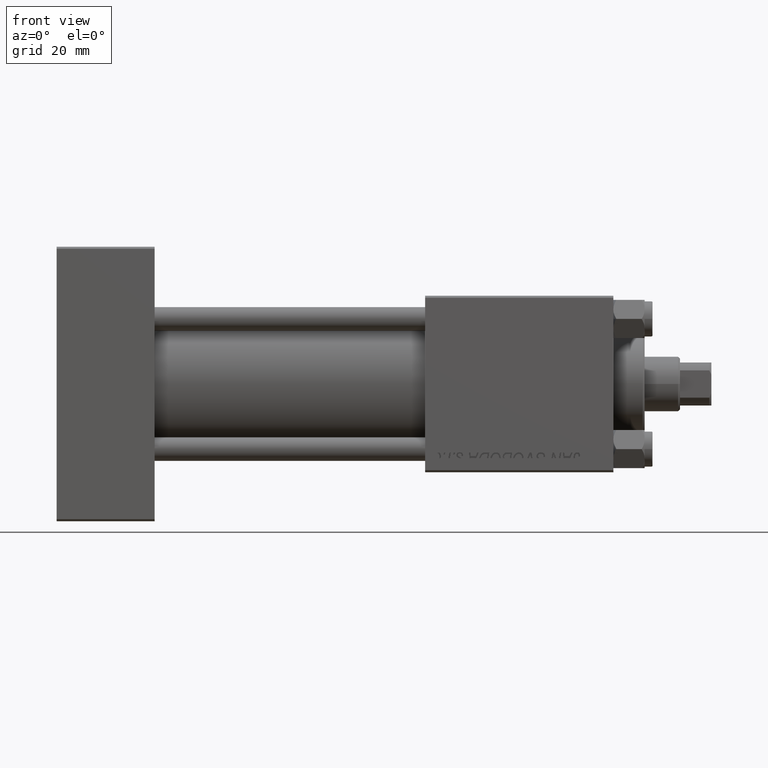
[diagram: clean part render]
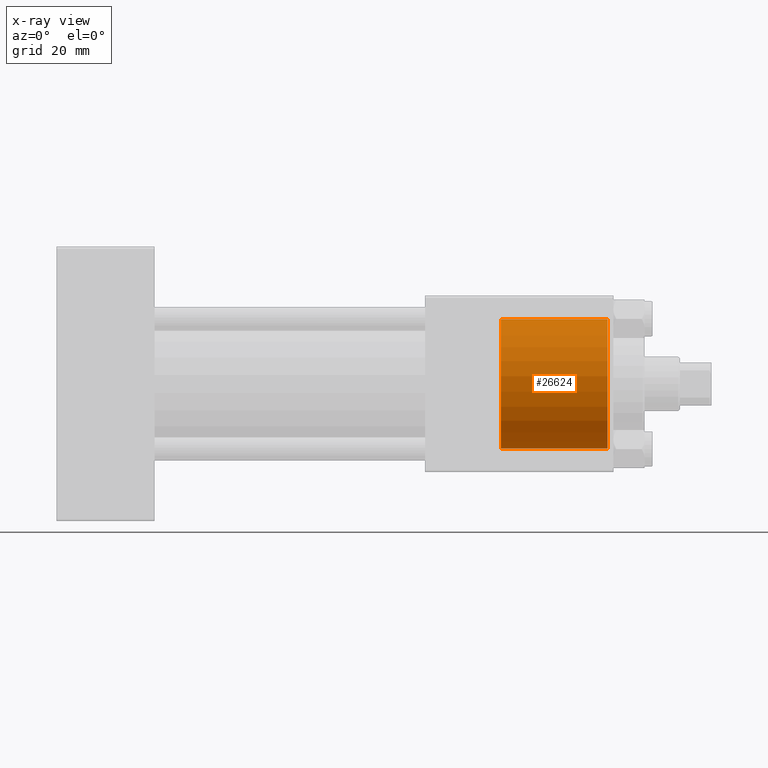
[diagram: x-ray — body ghosted, one internal face saturated and labeled with its STEP entity id]
A machine part, front view, then the same camera in x-ray: the body is ghosted and one INTERNAL B-rep face — a face not visible from any outside direction — is saturated and labeled: STEP entity #26624.
In plain terms, the highlighted cylindrical surface (partial cylindrical patch) has radius 16.5 mm, axis along (1, 0, 0).
Its self-contained STEP definition (entity closure, byte-faithful):
#820 = CARTESIAN_POINT ( 'NONE',  ( 113.3000000000000114, 2.020667218593133100E-15, 16.50000000000000000 ) ) ;
#1112 = CARTESIAN_POINT ( 'NONE',  ( 113.3000000000000114, 0.000000000000000000, -16.50000000000000000 ) ) ;
#1836 = DIRECTION ( 'NONE',  ( 1.000000000000000000, -0.000000000000000000, -0.000000000000000000 ) ) ;
#3280 = DIRECTION ( 'NONE',  ( 1.000000000000000000, 0.000000000000000000, 0.000000000000000000 ) ) ;
#5604 = LINE ( 'NONE', #37414, #27514 ) ;
#7297 = VERTEX_POINT ( 'NONE', #1112 ) ;
#10469 = ORIENTED_EDGE ( 'NONE', *, *, #47369, .T. ) ;
#11476 = CIRCLE ( 'NONE', #31631, 16.50000000000000000 ) ;
#12291 = DIRECTION ( 'NONE',  ( 1.000000000000000000, 0.000000000000000000, 0.000000000000000000 ) ) ;
#12558 = EDGE_CURVE ( 'NONE', #28863, #35554, #38287, .T. ) ;
#14664 = ORIENTED_EDGE ( 'NONE', *, *, #12558, .T. ) ;
#18387 = DIRECTION ( 'NONE',  ( 1.000000000000000000, -0.000000000000000000, -0.000000000000000000 ) ) ;
#20834 = VECTOR ( 'NONE', #23863, 1000.000000000000000 ) ;
#21123 = DIRECTION ( 'NONE',  ( 0.000000000000000000, 0.000000000000000000, 1.000000000000000000 ) ) ;
#23863 = DIRECTION ( 'NONE',  ( 1.000000000000000000, -0.000000000000000000, -0.000000000000000000 ) ) ;
#25505 = DIRECTION ( 'NONE',  ( 0.000000000000000000, 0.000000000000000000, -1.000000000000000000 ) ) ;
#26260 = CARTESIAN_POINT ( 'NONE',  ( 113.3000000000000114, 0.000000000000000000, 0.000000000000000000 ) ) ;
#26624 = ADVANCED_FACE ( 'NONE', ( #29762 ), #37357, .F. ) ;
#26916 = CARTESIAN_POINT ( 'NONE',  ( 113.3000000000000114, 2.020667218593133100E-15, 16.50000000000000000 ) ) ;
#27514 = VECTOR ( 'NONE', #1836, 1000.000000000000000 ) ;
#27627 = CIRCLE ( 'NONE', #34099, 16.50000000000000000 ) ;
#28863 = VERTEX_POINT ( 'NONE', #820 ) ;
#29762 = FACE_OUTER_BOUND ( 'NONE', #45088, .T. ) ;
#30486 = CARTESIAN_POINT ( 'NONE',  ( 140.5000000000000000, 2.020667218593133100E-15, 16.50000000000000000 ) ) ;
#31631 = AXIS2_PLACEMENT_3D ( 'NONE', #26260, #3280, #25505 ) ;
#33316 = DIRECTION ( 'NONE',  ( 0.000000000000000000, 0.000000000000000000, -1.000000000000000000 ) ) ;
#34099 = AXIS2_PLACEMENT_3D ( 'NONE', #36294, #12291, #21123 ) ;
#35554 = VERTEX_POINT ( 'NONE', #30486 ) ;
#36294 = CARTESIAN_POINT ( 'NONE',  ( 140.5000000000000000, 0.000000000000000000, 0.000000000000000000 ) ) ;
#36441 = CARTESIAN_POINT ( 'NONE',  ( 140.5000000000000000, 0.000000000000000000, -16.50000000000000000 ) ) ;
#37357 = CYLINDRICAL_SURFACE ( 'NONE', #40017, 16.50000000000000000 ) ;
#37414 = CARTESIAN_POINT ( 'NONE',  ( 113.3000000000000114, 0.000000000000000000, -16.50000000000000000 ) ) ;
#38287 = LINE ( 'NONE', #26916, #20834 ) ;
#40017 = AXIS2_PLACEMENT_3D ( 'NONE', #45440, #18387, #33316 ) ;
#41023 = ORIENTED_EDGE ( 'NONE', *, *, #48905, .F. ) ;
#45088 = EDGE_LOOP ( 'NONE', ( #46799, #14664, #10469, #41023 ) ) ;
#45440 = CARTESIAN_POINT ( 'NONE',  ( 113.3000000000000114, 0.000000000000000000, 0.000000000000000000 ) ) ;
#45623 = EDGE_CURVE ( 'NONE', #28863, #7297, #11476, .T. ) ;
#46290 = VERTEX_POINT ( 'NONE', #36441 ) ;
#46799 = ORIENTED_EDGE ( 'NONE', *, *, #45623, .F. ) ;
#47369 = EDGE_CURVE ( 'NONE', #35554, #46290, #27627, .T. ) ;
#48905 = EDGE_CURVE ( 'NONE', #7297, #46290, #5604, .T. ) ;